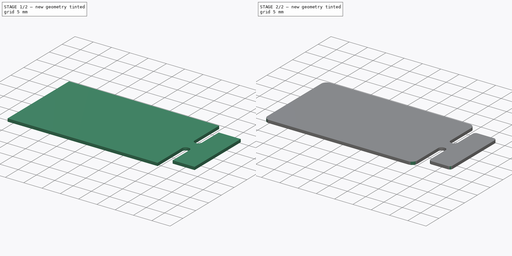
[diagram: build sequence overview — one tinted view per stage of 2, left to right]
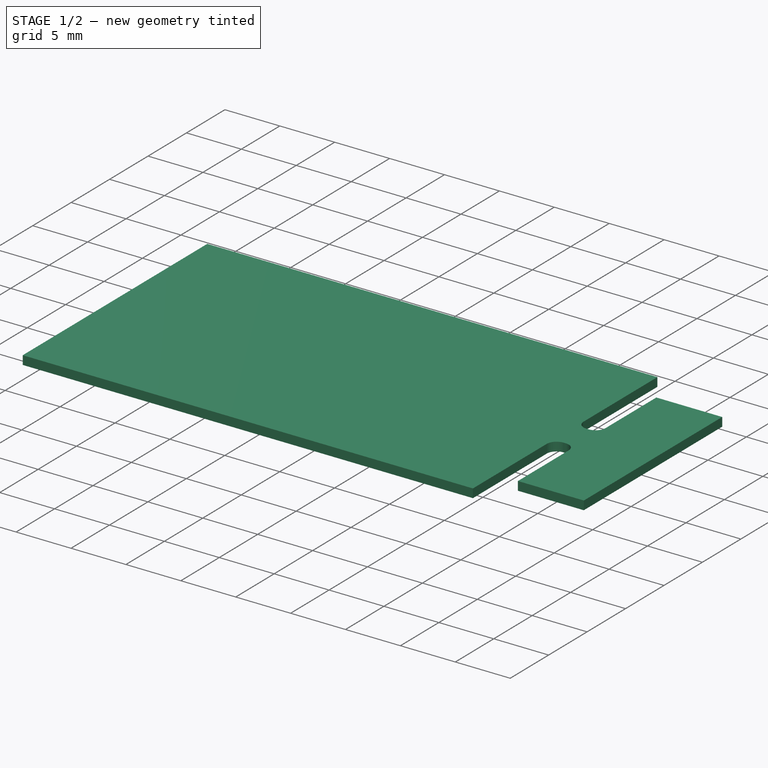
[diagram: stage 1 of 2 — iso view after this stage's code; geometry added in this stage tinted green]
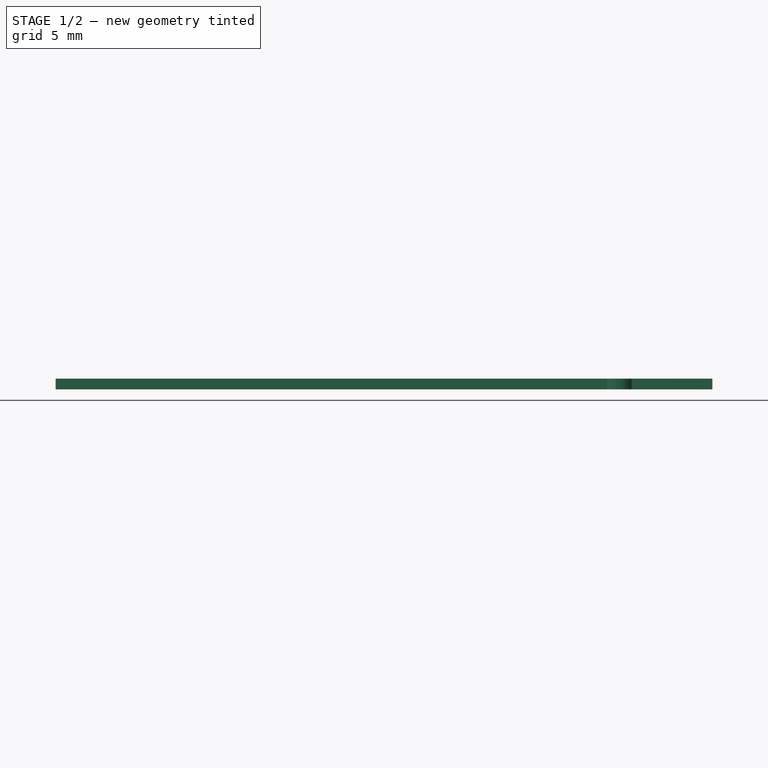
[diagram: stage 1 of 2 — front view after this stage's code; geometry added in this stage tinted green]
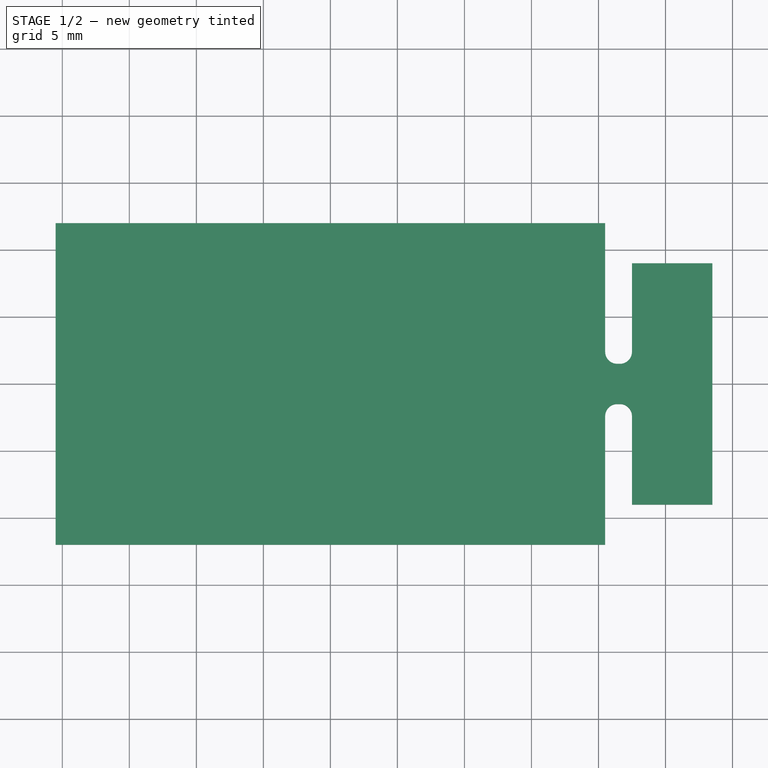
[diagram: stage 1 of 2 — top view after this stage's code; geometry added in this stage tinted green]
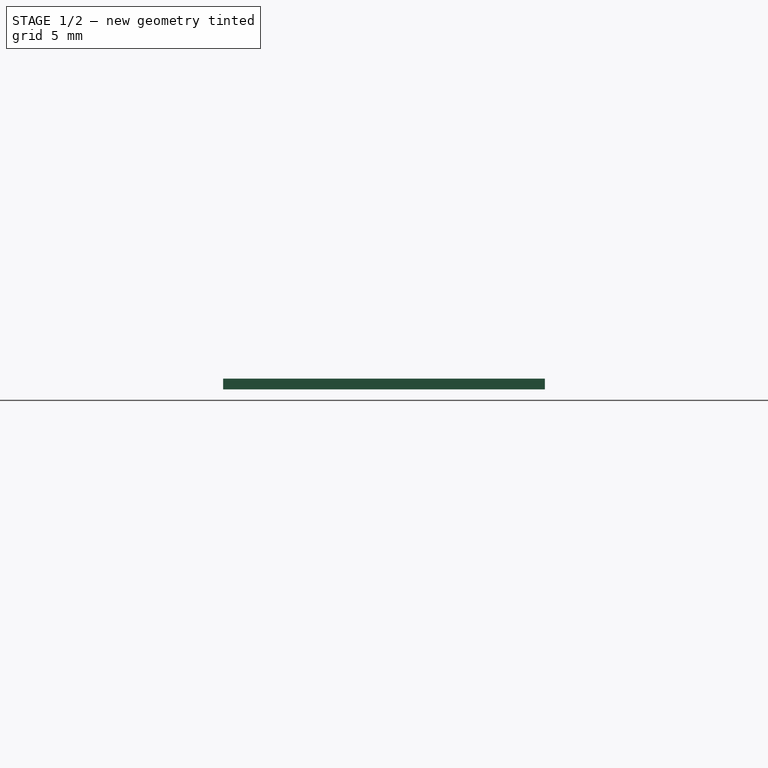
[diagram: stage 1 of 2 — right view after this stage's code; geometry added in this stage tinted green]
FCSTD DOCUMENT  (FreeCAD 2021.311R24301 +3373 (Git))
Label: PCB_Outline
License: All rights reserved
LicenseURL: http://en.wikipedia.org/wiki/All_rights_reserved
objects: PartDesign::Fillet×3, Sketcher::SketchObject×1, PartDesign::Pad×1, PartDesign::SubShapeBinder×1, PartDesign::Body×1
note: 15 computed .brp shape members not serialized (recipe doc carries the construction recipe); baked Part::Feature solids carry a one-line shape summary decoded from their .brp

FEATURE [Sketcher::SketchObject] Sketch
  FullyConstrained = true
  MapMode = 5
  Support = -> [XY_Plane]
  sketch-geometry (14):
    g0: LineSegment StartX=-20.5 StartY=12 StartZ=0 EndX=20.5 EndY=12 EndZ=0
    g1: LineSegment [constr] StartX=20.5 StartY=12 StartZ=0 EndX=20.5 EndY=-12 EndZ=0
    g2: LineSegment StartX=20.5 StartY=-12 StartZ=0 EndX=-20.5 EndY=-12 EndZ=0
    g3: LineSegment StartX=-20.5 StartY=-12 StartZ=0 EndX=-20.5 EndY=12 EndZ=0
    g4: LineSegment StartX=28.5 StartY=9 StartZ=0 EndX=22.5 EndY=9 EndZ=0
    g5: LineSegment [constr] StartX=22.5 StartY=9 StartZ=0 EndX=22.5 EndY=-9 EndZ=0
    g6: LineSegment StartX=22.5 StartY=-9 StartZ=0 EndX=28.5 EndY=-9 EndZ=0
    g7: LineSegment StartX=28.5 StartY=-9 StartZ=0 EndX=28.5 EndY=9 EndZ=0
    g8: LineSegment StartX=22.5 StartY=9 StartZ=0 EndX=22.5 EndY=1.5 EndZ=0
    g9: LineSegment StartX=22.5 StartY=1.5 StartZ=0 EndX=20.5 EndY=1.5 EndZ=0
    g10: LineSegment StartX=20.5 StartY=1.5 StartZ=0 EndX=20.5 EndY=12 EndZ=0
    g11: LineSegment StartX=22.5 StartY=-9 StartZ=0 EndX=22.5 EndY=-1.5 EndZ=0
    g12: LineSegment StartX=22.5 StartY=-1.5 StartZ=0 EndX=20.5 EndY=-1.5 EndZ=0
    g13: LineSegment StartX=20.5 StartY=-1.5 StartZ=0 EndX=20.5 EndY=-12 EndZ=0
  constraints (37):
    c: Coincident(g0,g1)
    c: Coincident(g1,g2)
    c: Coincident(g2,g3)
    c: Coincident(g3,g0)
    c: Horizontal(g0)
    c: Horizontal(g2)
    c: Vertical(g1)
    c: Vertical(g3)
    c: Symmetric(g1,g0,g-1)
    c: Coincident(g4,g5)
    c: Coincident(g5,g6)
    c: Coincident(g6,g7)
    c: Coincident(g7,g4)
    c: Horizontal(g4)
    c: Horizontal(g6)
    c: Vertical(g5)
    c: DistanceY(g1,g1) = 24
    c: DistanceX(g2,g2) = 41
    c: DistanceX(g1,g5) = 2
    c: DistanceX(g6,g6) = 6
    c: DistanceY(g7,g7) = 18
    c: Symmetric(g4,g6,g-1)
    c: Coincident(g8,g4)
    c: PointOnObject(g8,g5)
    c: Coincident(g9,g8)
    c: PointOnObject(g9,g1)
    c: Horizontal(g9)
    c: Coincident(g10,g9)
    c: Coincident(g10,g0)
    c: Coincident(g11,g6)
    c: Coincident(g12,g11)
    c: PointOnObject(g12,g1)
    c: Horizontal(g12)
    c: Coincident(g13,g12)
    c: DistanceY(g11,g8) = 3
    c: Symmetric(g11,g8,g-1)
    c: Coincident(g2,g13)
FEATURE [PartDesign::Pad] Pad
  ClaimChildren = false
  Direction = (1,1,1)
  Fit = 0
  FitJoin = 0
  InnerFit = 0
  InnerFitJoin = 0
  InnerTaperAngle = 0
  InnerTaperAngleRev = 0
  Length = 0.8
  Length2 = 100
  NewSolid = false
  Profile = -> Sketch
  Suppress = false
  Type = 0
  UsePipeForDraft = true
FEATURE [PartDesign::Fillet] Fillet  label="Breakaway Fiillet"
  Base = -> Pad [Edge2,Edge23,Edge20,Edge5]
  BaseFeature = -> Pad
  NewSolid = false
  Radius = 0.9
  SupportTransform = false
  Suppress = false
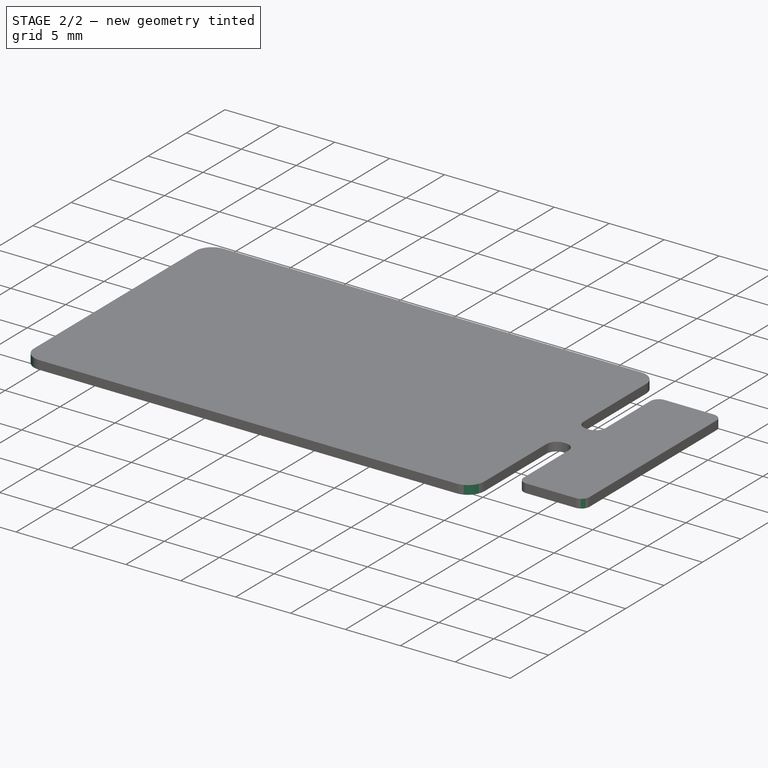
[diagram: stage 2 of 2 — iso view after this stage's code; geometry added in this stage tinted green]
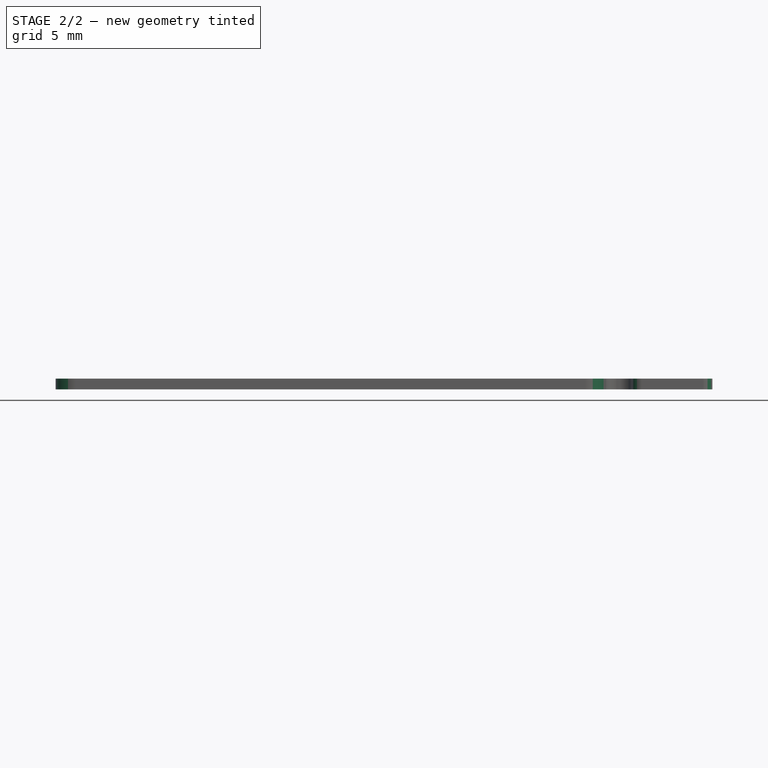
[diagram: stage 2 of 2 — front view after this stage's code; geometry added in this stage tinted green]
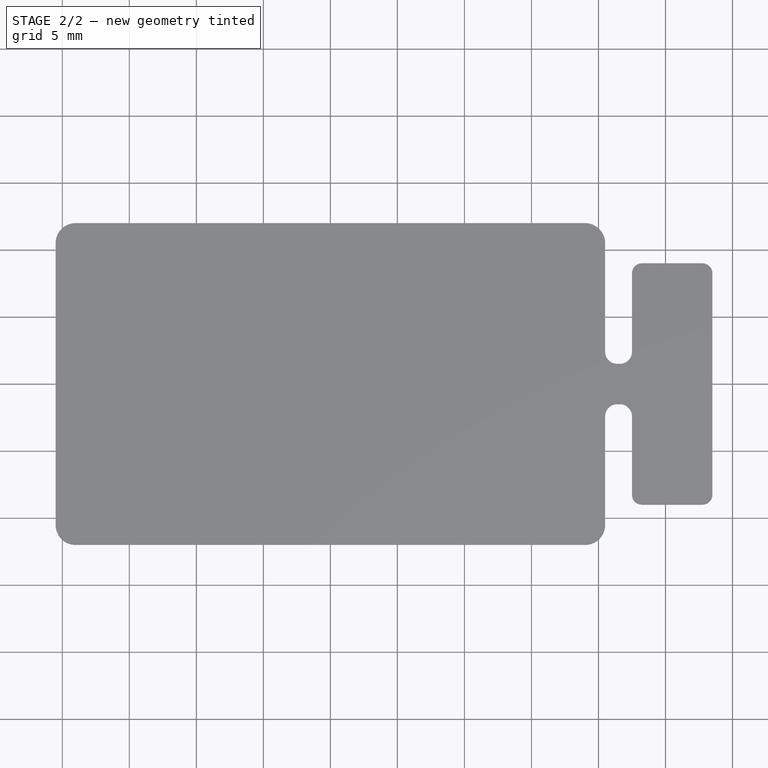
[diagram: stage 2 of 2 — top view after this stage's code; geometry added in this stage tinted green]
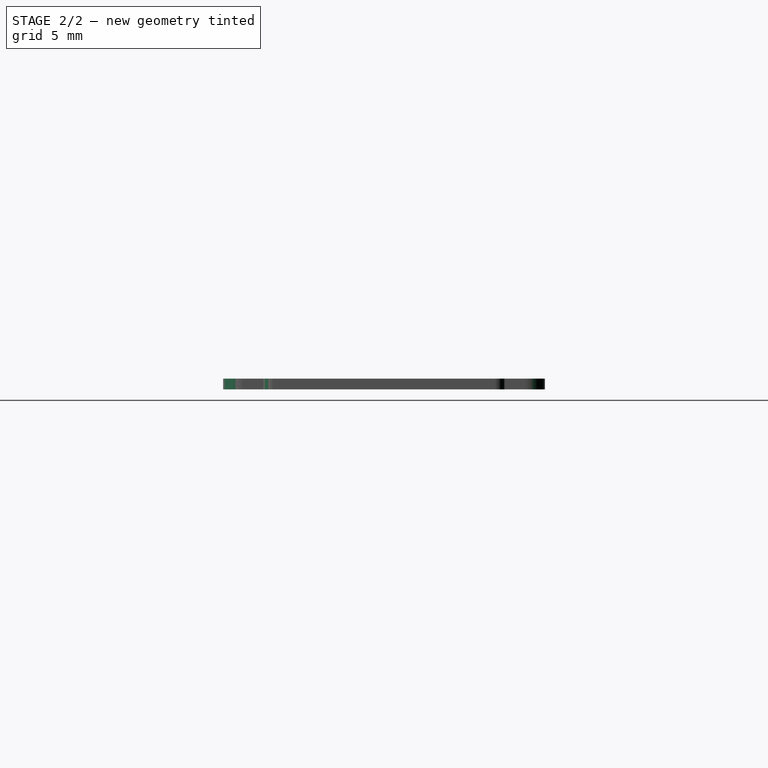
[diagram: stage 2 of 2 — right view after this stage's code; geometry added in this stage tinted green]
FEATURE [PartDesign::Fillet] Fillet001  label="Small Fillet"
  Base = -> Fillet [Edge3,Edge22,Edge38,Edge40]
  BaseFeature = -> Fillet
  NewSolid = false
  Radius = 0.75
  SupportTransform = false
  Suppress = false
FEATURE [PartDesign::Fillet] Fillet002  label="Large Part Fillet"
  Base = -> Fillet001 [Edge50,Edge52,Edge54,Edge56]
  BaseFeature = -> Fillet001
  NewSolid = false
  Radius = 1.5
  SupportTransform = false
  Suppress = false
FEATURE [PartDesign::SubShapeBinder] Binder  label="Binder(Large Part Fillet)"
  BindCopyOnChange = 0
  BindMode = 0
  ClaimChildren = false
  Context = -> Body [Binder.]
  FillStyle = 0
  Fuse = false
  MakeFace = true
  PartialLoad = false
  Relative = true
  Support = -> [Fillet002[Face26]]
  _Version = 7
FEATURE [PartDesign::Body] Body
  AutoGroupSolids = false
  ExportMode = 0
  Group = -> [Sketch,Pad,Fillet,Fillet001,Fillet002,Binder]
  Origin = -> Origin
  Tip = -> Fillet002
  _ExportChildren = -> [Pad,Fillet,Fillet001,Fillet002,Binder]
  _GroupVersion = 1
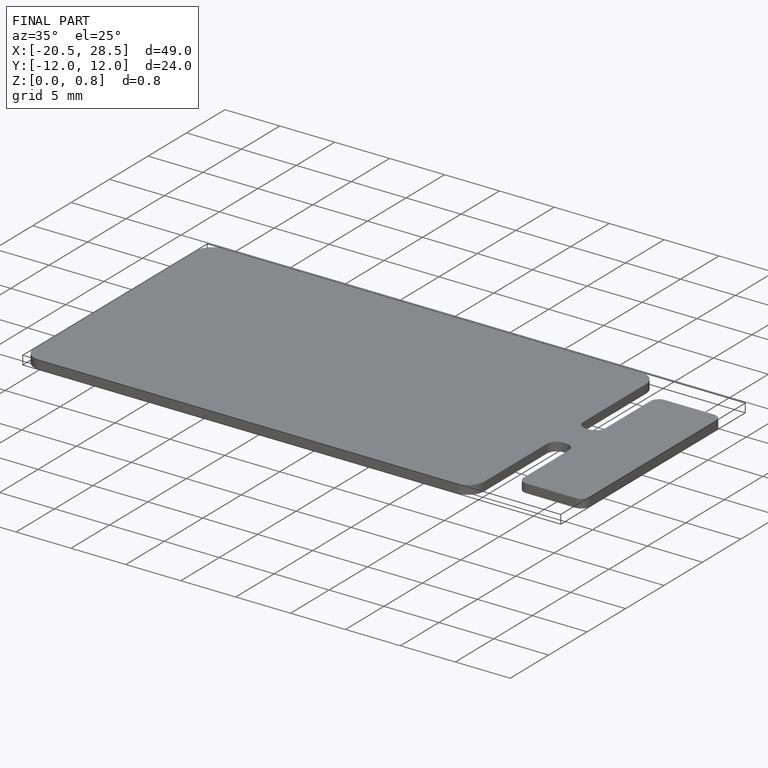
[diagram: finished part — iso view with bounding-box wireframe]
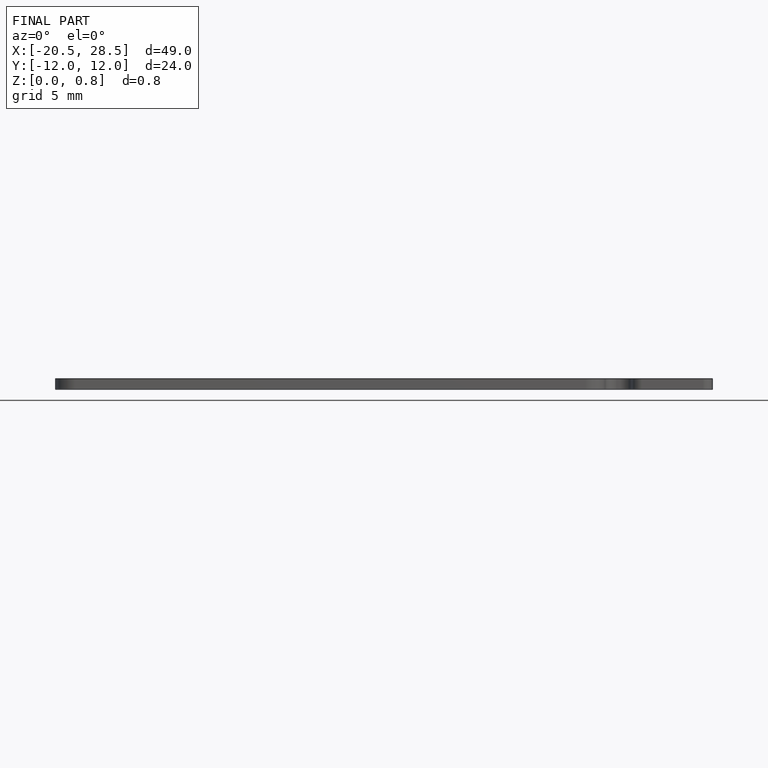
[diagram: finished part — front view with bounding-box wireframe]
